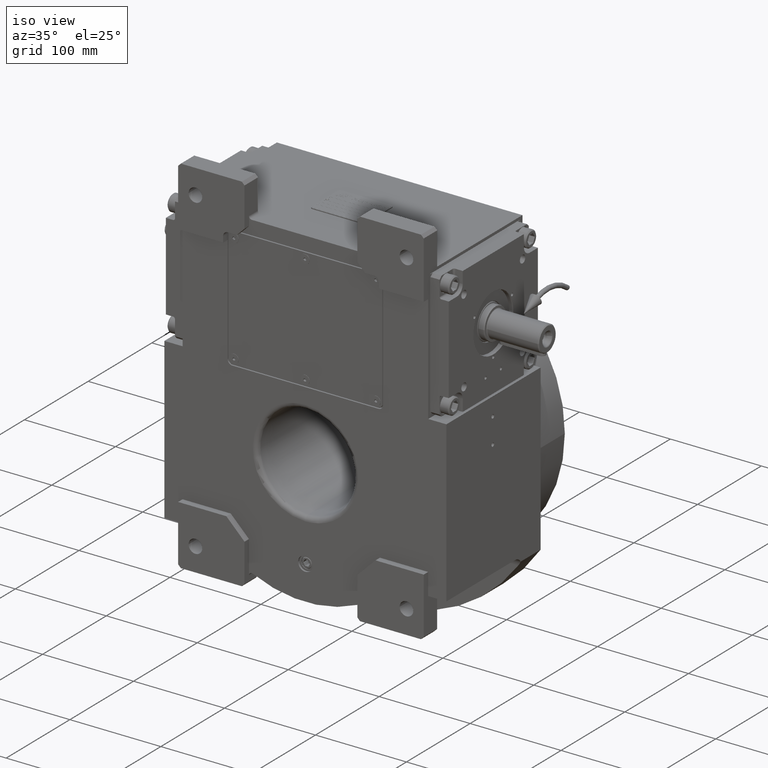
[diagram: clean part render]
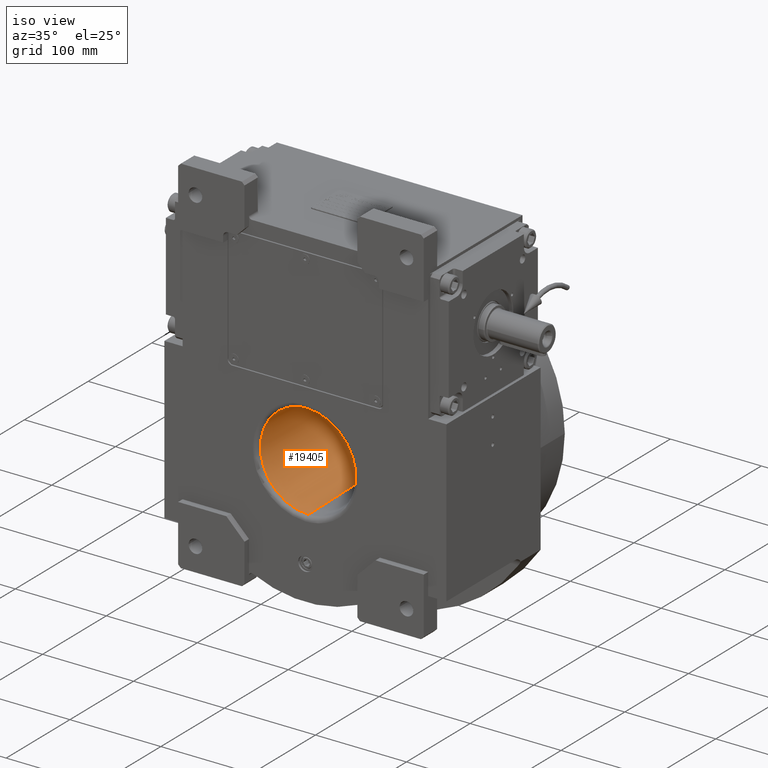
[diagram: same view with one face highlighted and labeled with its STEP entity id]
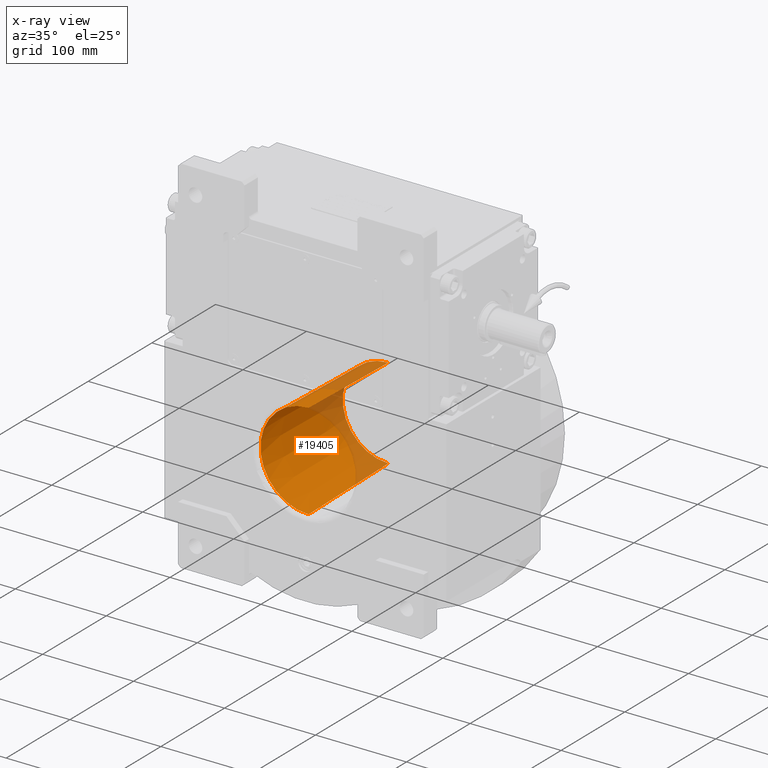
[diagram: x-ray of the same camera — body ghosted, the highlighted face saturated]
A machine part, iso view. The second image highlights one B-rep face of the part: STEP entity #19405.
The next image is the same camera in x-ray: the body ghosted, the highlighted face saturated — about 24% of this face is hidden behind the body in this view.
In plain terms, the highlighted conical surface has half-angle 1.292 deg.
Its self-contained STEP definition (entity closure, byte-faithful):
#5772 = DIRECTION ( 'NONE',  ( 0.9882587347805640299, -2.055886669902873894E-08, -0.1527896368538074756 ) ) ;
#17116 = VECTOR ( 'NONE', #35428, 1000.000000000000114 ) ;
#17189 = AXIS2_PLACEMENT_3D ( 'NONE', #21962, #38119, #59540 ) ;
#19405 = ADVANCED_FACE ( 'NONE', ( #48239 ), #23912, .F. ) ;
#20507 = LINE ( 'NONE', #31747, #26350 ) ;
#21193 = EDGE_CURVE ( 'NONE', #23263, #63691, #63185, .T. ) ;
#21962 = CARTESIAN_POINT ( 'NONE',  ( 3.083076751974459965E-08, 57.06765196477320501, -2.539431900768300017E-15 ) ) ;
#23263 = VERTEX_POINT ( 'NONE', #63980 ) ;
#23912 = CONICAL_SURFACE ( 'NONE', #58654, 1.000000000000000000, 0.02255256665030591981 ) ;
#24361 = ORIENTED_EDGE ( 'NONE', *, *, #29529, .T. ) ;
#26350 = VECTOR ( 'NONE', #31409, 1000.000000000000114 ) ;
#27752 = CARTESIAN_POINT ( 'NONE',  ( -5.647091595521470526E-12, 57.06765196477320501, 50.06614318876450653 ) ) ;
#27969 = ORIENTED_EDGE ( 'NONE', *, *, #21193, .T. ) ;
#29529 = EDGE_CURVE ( 'NONE', #48878, #23263, #20507, .T. ) ;
#31409 = DIRECTION ( 'NONE',  ( -2.761658737181604074E-18, 0.9997457016474147196, 0.02255065492437784494 ) ) ;
#31460 = CARTESIAN_POINT ( 'NONE',  ( 0.000000000000000000, 2232.333333333314840, -3.962844522719785252E-13 ) ) ;
#31747 = CARTESIAN_POINT ( 'NONE',  ( 6.477127694746659705E-15, -68.11275327462179519, -52.88976135205919604 ) ) ;
#35428 = DIRECTION ( 'NONE',  ( 5.523317474363207377E-18, 0.9997457016474147196, -0.02255065492437819882 ) ) ;
#37709 = VERTEX_POINT ( 'NONE', #52896 ) ;
#38119 = DIRECTION ( 'NONE',  ( 1.997138262492154581E-08, 0.9999999999999997780, 6.123233971614108296E-17 ) ) ;
#38938 = ORIENTED_EDGE ( 'NONE', *, *, #51781, .F. ) ;
#41113 = AXIS2_PLACEMENT_3D ( 'NONE', #43669, #49619, #5772 ) ;
#41967 = DIRECTION ( 'NONE',  ( 0.000000000000000000, -1.000000000000000000, 1.836909530733564901E-16 ) ) ;
#42293 = ORIENTED_EDGE ( 'NONE', *, *, #45975, .F. ) ;
#43361 = CIRCLE ( 'NONE', #41113, 52.88976140256119152 ) ;
#43669 = CARTESIAN_POINT ( 'NONE',  ( 5.180066373969149615E-08, -68.11275406274060629, 4.736386318413870025E-15 ) ) ;
#45975 = EDGE_CURVE ( 'NONE', #48878, #37709, #43361, .T. ) ;
#48239 = FACE_OUTER_BOUND ( 'NONE', #48372, .T. ) ;
#48372 = EDGE_LOOP ( 'NONE', ( #24361, #27969, #38938, #42293 ) ) ;
#48878 = VERTEX_POINT ( 'NONE', #51817 ) ;
#49619 = DIRECTION ( 'NONE',  ( 2.310691404686464099E-08, 0.9999999999999997780, 1.490116125507999888E-08 ) ) ;
#51781 = EDGE_CURVE ( 'NONE', #37709, #63691, #57546, .T. ) ;
#51817 = CARTESIAN_POINT ( 'NONE',  ( 3.366158563859759886E-11, -68.11275327462200835, -52.88976135205919604 ) ) ;
#52851 = DIRECTION ( 'NONE',  ( 0.000000000000000000, 0.000000000000000000, 1.000000000000000000 ) ) ;
#52896 = CARTESIAN_POINT ( 'NONE',  ( -3.366447261396295104E-11, -68.11275327462200835, 52.88976135205919604 ) ) ;
#57546 = LINE ( 'NONE', #62146, #17116 ) ;
#58654 = AXIS2_PLACEMENT_3D ( 'NONE', #31460, #41967, #52851 ) ;
#59540 = DIRECTION ( 'NONE',  ( 0.9817544653963818924, -1.960699399857663348E-08, -0.1901530164742704643 ) ) ;
#62146 = CARTESIAN_POINT ( 'NONE',  ( -1.295425538949331941E-14, -68.11275327462179519, 52.88976135205919604 ) ) ;
#63185 = CIRCLE ( 'NONE', #17189, 50.06614321695211345 ) ;
#63691 = VERTEX_POINT ( 'NONE', #27752 ) ;
#63980 = CARTESIAN_POINT ( 'NONE',  ( 5.632922360699180090E-12, 57.06765196477320501, -50.06614318876450653 ) ) ;